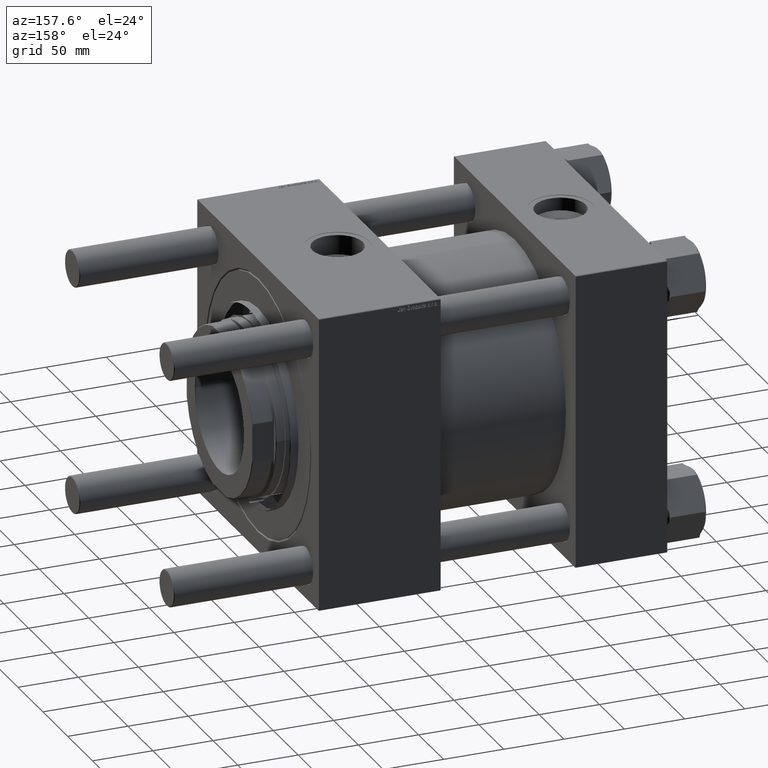
[diagram: clean part render]
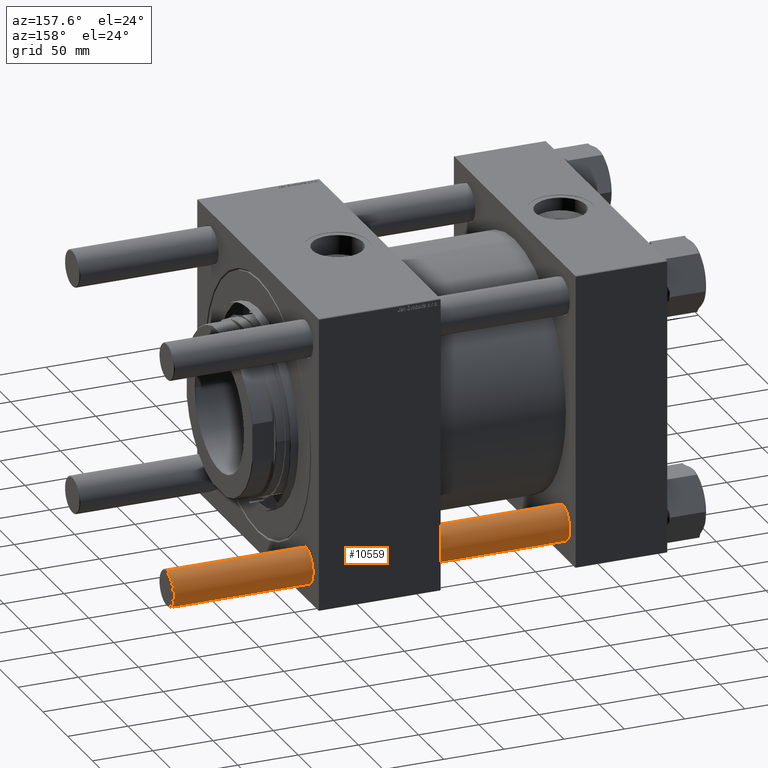
[diagram: same view with one face highlighted and labeled with its STEP entity id]
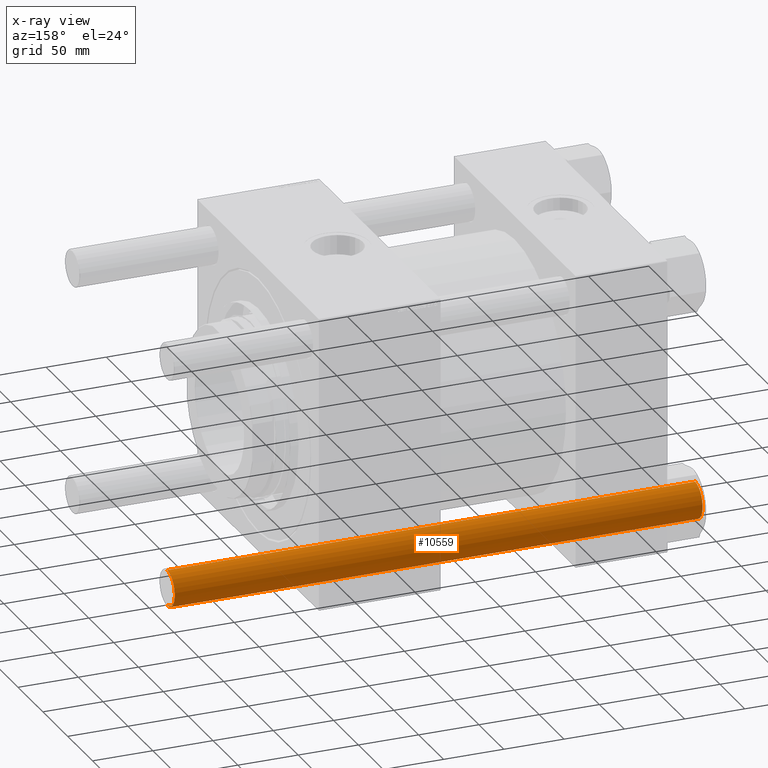
[diagram: x-ray of the same camera — body ghosted, the highlighted face saturated]
A machine part, auxiliary view. The second image highlights one B-rep face of the part: STEP entity #10559.
The next image is the same camera in x-ray: the body ghosted, the highlighted face saturated — about 0% of this face is hidden behind the body in this view.
In plain terms, the highlighted cylindrical surface (edge-blend (fillet) strip) has radius 15 mm, axis along (-1, -0, 0).
Its self-contained STEP definition (entity closure, byte-faithful):
#47 = AXIS2_PLACEMENT_3D ( 'NONE', #50761, #7222, #14798 ) ;
#475 = LINE ( 'NONE', #17597, #50044 ) ;
#3893 = DIRECTION ( 'NONE',  ( -0.000000000000000000, -0.000000000000000000, 1.000000000000000000 ) ) ;
#5020 = DIRECTION ( 'NONE',  ( 1.000000000000000000, 0.000000000000000000, 0.000000000000000000 ) ) ;
#7222 = DIRECTION ( 'NONE',  ( 0.000000000000000000, 0.000000000000000000, -1.000000000000000000 ) ) ;
#8818 = VERTEX_POINT ( 'NONE', #32444 ) ;
#9728 = EDGE_CURVE ( 'NONE', #39196, #25438, #475, .T. ) ;
#10244 = CIRCLE ( 'NONE', #47, 15.00000000000000000 ) ;
#10559 = ADVANCED_FACE ( 'NONE', ( #16576 ), #21209, .T. ) ;
#10834 = EDGE_CURVE ( 'NONE', #38154, #39196, #10244, .T. ) ;
#12472 = EDGE_CURVE ( 'NONE', #38154, #8818, #32599, .T. ) ;
#13668 = CARTESIAN_POINT ( 'NONE',  ( -15.00000000000000000, 0.000000000000000000, 438.5000000000000000 ) ) ;
#14798 = DIRECTION ( 'NONE',  ( 1.000000000000000000, 0.000000000000000000, 0.000000000000000000 ) ) ;
#16576 = FACE_OUTER_BOUND ( 'NONE', #45933, .T. ) ;
#17597 = CARTESIAN_POINT ( 'NONE',  ( 15.00000000000000000, 1.836970198721029589E-15, 439.0000000000000000 ) ) ;
#21209 = CYLINDRICAL_SURFACE ( 'NONE', #40752, 15.00000000000000000 ) ;
#22049 = CARTESIAN_POINT ( 'NONE',  ( 0.000000000000000000, 0.000000000000000000, 439.0000000000000000 ) ) ;
#25438 = VERTEX_POINT ( 'NONE', #50313 ) ;
#25922 = CARTESIAN_POINT ( 'NONE',  ( 0.000000000000000000, 0.000000000000000000, 0.5000000000000559552 ) ) ;
#27193 = CIRCLE ( 'NONE', #35505, 15.00000000000000000 ) ;
#27661 = CARTESIAN_POINT ( 'NONE',  ( -15.00000000000000000, 0.000000000000000000, 439.0000000000000000 ) ) ;
#28235 = DIRECTION ( 'NONE',  ( -0.000000000000000000, -0.000000000000000000, -1.000000000000000000 ) ) ;
#28979 = EDGE_CURVE ( 'NONE', #25438, #8818, #27193, .T. ) ;
#30673 = ORIENTED_EDGE ( 'NONE', *, *, #12472, .F. ) ;
#32444 = CARTESIAN_POINT ( 'NONE',  ( -15.00000000000000000, 0.000000000000000000, 0.5000000000000559552 ) ) ;
#32599 = LINE ( 'NONE', #27661, #54768 ) ;
#34264 = DIRECTION ( 'NONE',  ( -0.000000000000000000, -0.000000000000000000, -1.000000000000000000 ) ) ;
#35273 = ORIENTED_EDGE ( 'NONE', *, *, #28979, .T. ) ;
#35505 = AXIS2_PLACEMENT_3D ( 'NONE', #25922, #3893, #5020 ) ;
#38154 = VERTEX_POINT ( 'NONE', #13668 ) ;
#39196 = VERTEX_POINT ( 'NONE', #53570 ) ;
#40752 = AXIS2_PLACEMENT_3D ( 'NONE', #22049, #34264, #52811 ) ;
#42930 = ORIENTED_EDGE ( 'NONE', *, *, #9728, .T. ) ;
#42952 = ORIENTED_EDGE ( 'NONE', *, *, #10834, .T. ) ;
#45933 = EDGE_LOOP ( 'NONE', ( #42952, #42930, #35273, #30673 ) ) ;
#48626 = DIRECTION ( 'NONE',  ( -0.000000000000000000, -0.000000000000000000, -1.000000000000000000 ) ) ;
#50044 = VECTOR ( 'NONE', #48626, 1000.000000000000000 ) ;
#50313 = CARTESIAN_POINT ( 'NONE',  ( 15.00000000000000000, 1.836970198721029589E-15, 0.5000000000000559552 ) ) ;
#50761 = CARTESIAN_POINT ( 'NONE',  ( 0.000000000000000000, 0.000000000000000000, 438.5000000000000000 ) ) ;
#52811 = DIRECTION ( 'NONE',  ( -1.000000000000000000, 0.000000000000000000, 0.000000000000000000 ) ) ;
#53570 = CARTESIAN_POINT ( 'NONE',  ( 15.00000000000000000, 1.836970198721029589E-15, 438.5000000000000000 ) ) ;
#54768 = VECTOR ( 'NONE', #28235, 1000.000000000000000 ) ;